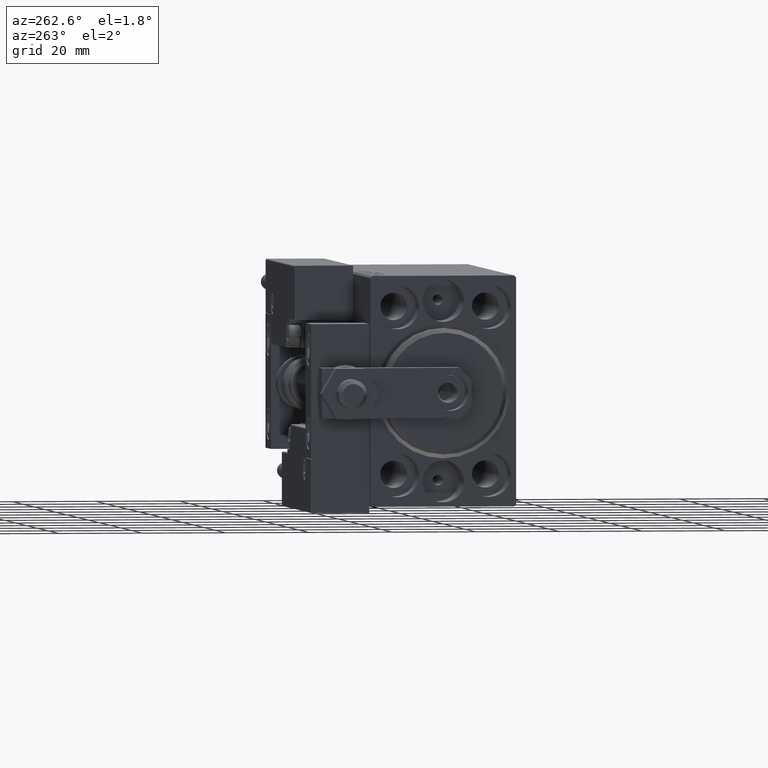
[diagram: clean part render]
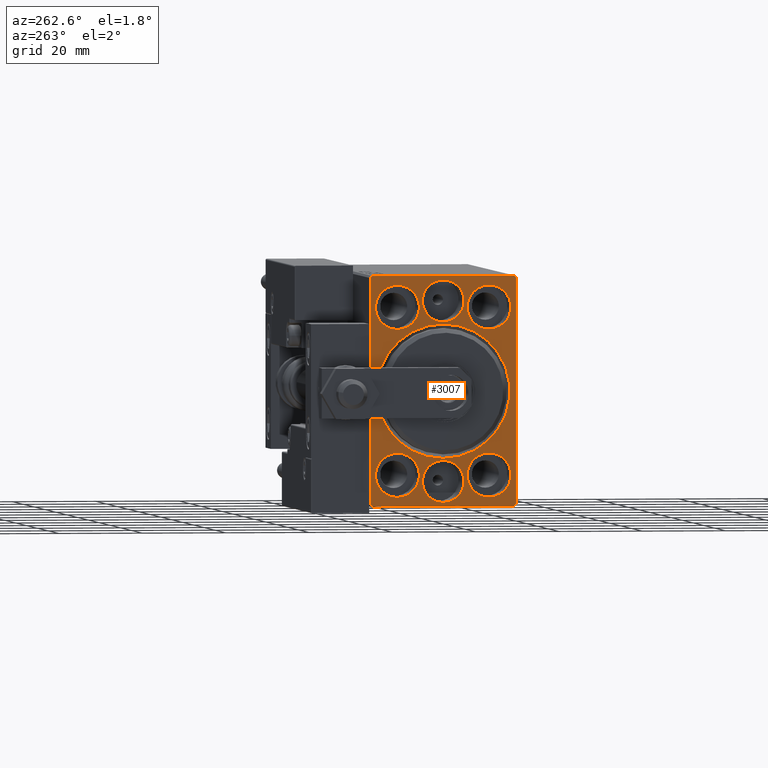
[diagram: same view with one face highlighted and labeled with its STEP entity id]
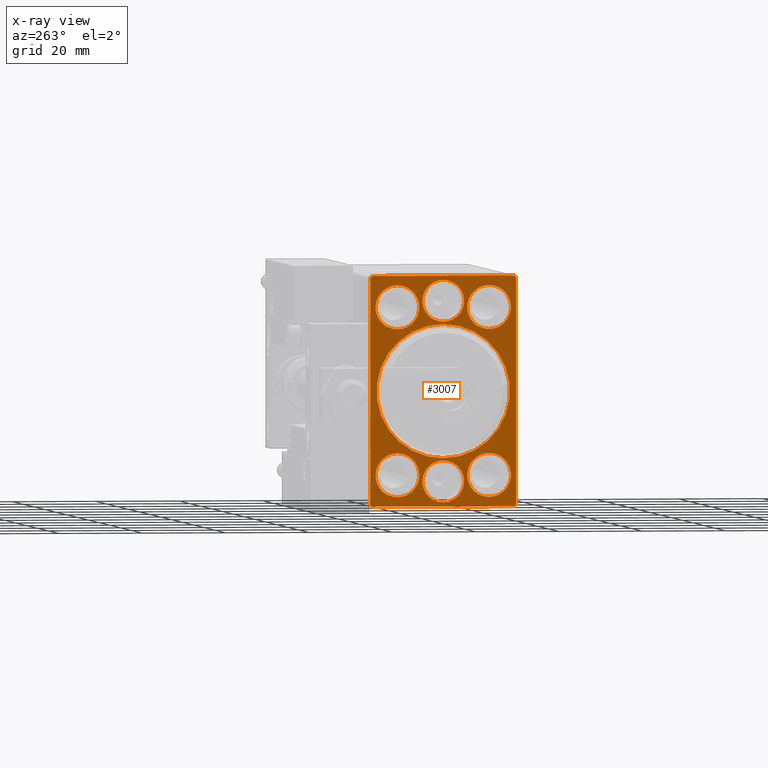
[diagram: x-ray of the same camera — body ghosted, the highlighted face saturated]
A machine part, auxiliary view. The second image highlights one B-rep face of the part: STEP entity #3007.
The next image is the same camera in x-ray: the body ghosted, the highlighted face saturated — about 0% of this face is hidden behind the body in this view.
In plain terms, the highlighted planar face has unit normal (1, 0, 0).
Its self-contained STEP definition (entity closure, byte-faithful):
#134 = LINE ( 'NONE', #22978, #14596 ) ;
#206 = CARTESIAN_POINT ( 'NONE',  ( 0.000000000000000000, 17.00000000000000711, -27.50000000000000355 ) ) ;
#318 = EDGE_CURVE ( 'NONE', #46711, #33952, #41290, .T. ) ;
#702 = DIRECTION ( 'NONE',  ( 0.000000000000000000, -1.261617073437677752E-16, 1.000000000000000000 ) ) ;
#732 = CARTESIAN_POINT ( 'NONE',  ( 0.000000000000000000, -17.00000000000000000, -27.50000000000000355 ) ) ;
#933 = CARTESIAN_POINT ( 'NONE',  ( 0.000000000000000000, -11.00000000000000355, -25.25000000000000000 ) ) ;
#1569 = VERTEX_POINT ( 'NONE', #4732 ) ;
#1576 = DIRECTION ( 'NONE',  ( 0.000000000000000000, 0.000000000000000000, 1.000000000000000000 ) ) ;
#1749 = DIRECTION ( 'NONE',  ( 0.000000000000000000, 0.000000000000000000, -1.000000000000000000 ) ) ;
#2031 = DIRECTION ( 'NONE',  ( 0.000000000000000000, 0.000000000000000000, -1.000000000000000000 ) ) ;
#2161 = EDGE_LOOP ( 'NONE', ( #13640, #5075 ) ) ;
#2199 = DIRECTION ( 'NONE',  ( 0.000000000000000000, 0.000000000000000000, 1.000000000000000000 ) ) ;
#2349 = CIRCLE ( 'NONE', #30685, 5.000000000000000888 ) ;
#2440 = LINE ( 'NONE', #25547, #8881 ) ;
#2516 = EDGE_CURVE ( 'NONE', #46633, #18234, #31245, .T. ) ;
#2565 = ORIENTED_EDGE ( 'NONE', *, *, #27871, .T. ) ;
#2603 = DIRECTION ( 'NONE',  ( -1.000000000000000000, 0.000000000000000000, 0.000000000000000000 ) ) ;
#3007 = ADVANCED_FACE ( 'NONE', ( #48422, #5815, #21288, #25612, #48171, #41062, #21799, #29664 ), #6066, .F. ) ;
#3097 = CARTESIAN_POINT ( 'NONE',  ( 0.000000000000000000, -11.00000000000000355, 14.75000000000000000 ) ) ;
#3102 = VERTEX_POINT ( 'NONE', #7066 ) ;
#3769 = DIRECTION ( 'NONE',  ( -1.000000000000000000, 0.000000000000000000, 0.000000000000000000 ) ) ;
#4053 = DIRECTION ( 'NONE',  ( 0.000000000000000000, 0.000000000000000000, 1.000000000000000000 ) ) ;
#4248 = VECTOR ( 'NONE', #702, 1000.000000000000000 ) ;
#4515 = CARTESIAN_POINT ( 'NONE',  ( 0.000000000000000000, 17.50000000000000711, -27.50000000000000355 ) ) ;
#4732 = CARTESIAN_POINT ( 'NONE',  ( 0.000000000000000000, 17.00000000000001421, 27.50000000000000355 ) ) ;
#5075 = ORIENTED_EDGE ( 'NONE', *, *, #22261, .F. ) ;
#5163 = EDGE_CURVE ( 'NONE', #7263, #13702, #38526, .T. ) ;
#5815 = FACE_BOUND ( 'NONE', #2161, .T. ) ;
#6042 = DIRECTION ( 'NONE',  ( -1.000000000000000000, 0.000000000000000000, 0.000000000000000000 ) ) ;
#6066 = PLANE ( 'NONE',  #20627 ) ;
#7044 = DIRECTION ( 'NONE',  ( -0.000000000000000000, -0.7071067811865474617, 0.7071067811865474617 ) ) ;
#7066 = CARTESIAN_POINT ( 'NONE',  ( 0.000000000000000000, -1.224646799147353256E-15, 16.49999999999999645 ) ) ;
#7263 = VERTEX_POINT ( 'NONE', #46068 ) ;
#8295 = CARTESIAN_POINT ( 'NONE',  ( 0.000000000000000000, 11.00000000000000355, -25.25000000000000000 ) ) ;
#8811 = ORIENTED_EDGE ( 'NONE', *, *, #24196, .F. ) ;
#8881 = VECTOR ( 'NONE', #14092, 1000.000000000000114 ) ;
#9489 = CIRCLE ( 'NONE', #27341, 5.000000000000000888 ) ;
#9897 = EDGE_CURVE ( 'NONE', #47118, #15814, #45051, .T. ) ;
#9939 = VERTEX_POINT ( 'NONE', #42095 ) ;
#10015 = CARTESIAN_POINT ( 'NONE',  ( 0.000000000000000000, -11.00000000000000355, -20.00000000000000000 ) ) ;
#10048 = DIRECTION ( 'NONE',  ( -0.000000000000000000, 0.7071067811865474617, -0.7071067811865474617 ) ) ;
#10333 = ORIENTED_EDGE ( 'NONE', *, *, #19551, .T. ) ;
#10682 = ORIENTED_EDGE ( 'NONE', *, *, #28894, .F. ) ;
#10793 = EDGE_CURVE ( 'NONE', #1569, #44771, #43874, .T. ) ;
#10809 = ORIENTED_EDGE ( 'NONE', *, *, #32784, .T. ) ;
#11087 = CARTESIAN_POINT ( 'NONE',  ( 0.000000000000000000, -17.50000000000000000, 27.49999999999999645 ) ) ;
#11115 = CARTESIAN_POINT ( 'NONE',  ( 0.000000000000000000, -11.00000000000000355, 20.00000000000000000 ) ) ;
#11262 = DIRECTION ( 'NONE',  ( -1.000000000000000000, 0.000000000000000000, 0.000000000000000000 ) ) ;
#11484 = ORIENTED_EDGE ( 'NONE', *, *, #35262, .F. ) ;
#11493 = EDGE_LOOP ( 'NONE', ( #43834, #10809 ) ) ;
#12173 = DIRECTION ( 'NONE',  ( 0.000000000000000000, -1.000000000000000000, -1.982541115402065110E-16 ) ) ;
#12210 = AXIS2_PLACEMENT_3D ( 'NONE', #28377, #6042, #33455 ) ;
#13009 = EDGE_CURVE ( 'NONE', #40433, #3102, #9489, .T. ) ;
#13489 = ORIENTED_EDGE ( 'NONE', *, *, #10793, .F. ) ;
#13640 = ORIENTED_EDGE ( 'NONE', *, *, #13009, .F. ) ;
#13702 = VERTEX_POINT ( 'NONE', #44113 ) ;
#13798 = DIRECTION ( 'NONE',  ( 0.000000000000000000, -0.7071067811865474617, -0.7071067811865474617 ) ) ;
#14092 = DIRECTION ( 'NONE',  ( -0.000000000000000000, 0.7071067811865474617, 0.7071067811865474617 ) ) ;
#14104 = CARTESIAN_POINT ( 'NONE',  ( 0.000000000000000000, -17.50000000000000000, 26.99999999999999645 ) ) ;
#14387 = ORIENTED_EDGE ( 'NONE', *, *, #21336, .F. ) ;
#14448 = CARTESIAN_POINT ( 'NONE',  ( 0.000000000000000000, 0.000000000000000000, 0.000000000000000000 ) ) ;
#14596 = VECTOR ( 'NONE', #38195, 1000.000000000000000 ) ;
#14693 = DIRECTION ( 'NONE',  ( 0.000000000000000000, 0.000000000000000000, 1.000000000000000000 ) ) ;
#15814 = VERTEX_POINT ( 'NONE', #34558 ) ;
#15885 = ORIENTED_EDGE ( 'NONE', *, *, #318, .F. ) ;
#16228 = CARTESIAN_POINT ( 'NONE',  ( 0.000000000000000000, 17.50000000000000000, 27.50000000000000355 ) ) ;
#16861 = EDGE_LOOP ( 'NONE', ( #15885, #23686, #13489, #40948, #10682, #10333, #48087, #2565 ) ) ;
#17307 = CARTESIAN_POINT ( 'NONE',  ( 0.000000000000000000, 11.00000000000000355, 20.00000000000000000 ) ) ;
#17560 = CARTESIAN_POINT ( 'NONE',  ( 0.000000000000000000, -1.836970198721029589E-15, -21.50000000000000000 ) ) ;
#17654 = LINE ( 'NONE', #18416, #30818 ) ;
#17792 = VERTEX_POINT ( 'NONE', #42114 ) ;
#17877 = DIRECTION ( 'NONE',  ( 0.000000000000000000, 0.000000000000000000, 1.000000000000000000 ) ) ;
#17899 = AXIS2_PLACEMENT_3D ( 'NONE', #34056, #42642, #45706 ) ;
#17955 = LINE ( 'NONE', #41788, #45543 ) ;
#18234 = VERTEX_POINT ( 'NONE', #8295 ) ;
#18325 = DIRECTION ( 'NONE',  ( -1.000000000000000000, 0.000000000000000000, 0.000000000000000000 ) ) ;
#18416 = CARTESIAN_POINT ( 'NONE',  ( 0.000000000000000000, 17.00000000000001421, 27.50000000000000355 ) ) ;
#18432 = AXIS2_PLACEMENT_3D ( 'NONE', #21996, #37702, #45575 ) ;
#18785 = AXIS2_PLACEMENT_3D ( 'NONE', #17307, #2603, #21382 ) ;
#18982 = DIRECTION ( 'NONE',  ( 0.000000000000000000, 0.000000000000000000, 1.000000000000000000 ) ) ;
#19059 = VERTEX_POINT ( 'NONE', #933 ) ;
#19237 = EDGE_CURVE ( 'NONE', #46711, #44771, #2440, .T. ) ;
#19551 = EDGE_CURVE ( 'NONE', #32806, #46396, #32101, .T. ) ;
#19595 = CIRCLE ( 'NONE', #18785, 5.250000000000000888 ) ;
#20627 = AXIS2_PLACEMENT_3D ( 'NONE', #37013, #40051, #1749 ) ;
#20721 = CARTESIAN_POINT ( 'NONE',  ( 0.000000000000000000, 11.00000000000000355, -14.75000000000000000 ) ) ;
#21288 = FACE_BOUND ( 'NONE', #11493, .T. ) ;
#21336 = EDGE_CURVE ( 'NONE', #17792, #19059, #37318, .T. ) ;
#21382 = DIRECTION ( 'NONE',  ( 0.000000000000000000, 0.000000000000000000, 1.000000000000000000 ) ) ;
#21799 = FACE_BOUND ( 'NONE', #27493, .T. ) ;
#21823 = DIRECTION ( 'NONE',  ( -1.000000000000000000, 0.000000000000000000, 0.000000000000000000 ) ) ;
#21996 = CARTESIAN_POINT ( 'NONE',  ( 0.000000000000000000, 0.000000000000000000, 0.000000000000000000 ) ) ;
#22028 = CIRCLE ( 'NONE', #25276, 5.250000000000000888 ) ;
#22261 = EDGE_CURVE ( 'NONE', #3102, #40433, #47883, .T. ) ;
#22845 = CARTESIAN_POINT ( 'NONE',  ( 0.000000000000000000, -1.836970198721029589E-15, 21.50000000000000000 ) ) ;
#22978 = CARTESIAN_POINT ( 'NONE',  ( 0.000000000000000000, -17.50000000000000000, -27.50000000000000355 ) ) ;
#23145 = AXIS2_PLACEMENT_3D ( 'NONE', #41591, #21823, #14693 ) ;
#23168 = AXIS2_PLACEMENT_3D ( 'NONE', #14448, #29444, #2031 ) ;
#23190 = EDGE_CURVE ( 'NONE', #1569, #30302, #17654, .T. ) ;
#23324 = EDGE_CURVE ( 'NONE', #27581, #46396, #134, .T. ) ;
#23686 = ORIENTED_EDGE ( 'NONE', *, *, #19237, .T. ) ;
#23803 = LINE ( 'NONE', #4515, #4248 ) ;
#24196 = EDGE_CURVE ( 'NONE', #41904, #35321, #36515, .T. ) ;
#24886 = EDGE_CURVE ( 'NONE', #33050, #9939, #47877, .T. ) ;
#25225 = AXIS2_PLACEMENT_3D ( 'NONE', #22845, #42365, #4053 ) ;
#25276 = AXIS2_PLACEMENT_3D ( 'NONE', #11115, #3769, #18982 ) ;
#25296 = CARTESIAN_POINT ( 'NONE',  ( 0.000000000000000000, 17.50000000000000711, -27.00000000000000355 ) ) ;
#25547 = CARTESIAN_POINT ( 'NONE',  ( 0.000000000000000000, -17.50000000000000000, 26.99999999999999645 ) ) ;
#25556 = CARTESIAN_POINT ( 'NONE',  ( 0.000000000000000000, -11.00000000000000355, 20.00000000000000000 ) ) ;
#25612 = FACE_BOUND ( 'NONE', #34818, .T. ) ;
#25788 = DIRECTION ( 'NONE',  ( 0.000000000000000000, 0.000000000000000000, 1.000000000000000000 ) ) ;
#26024 = DIRECTION ( 'NONE',  ( -1.000000000000000000, 0.000000000000000000, 0.000000000000000000 ) ) ;
#26308 = DIRECTION ( 'NONE',  ( -1.000000000000000000, 0.000000000000000000, 0.000000000000000000 ) ) ;
#27022 = CIRCLE ( 'NONE', #44831, 5.250000000000000888 ) ;
#27341 = AXIS2_PLACEMENT_3D ( 'NONE', #29490, #37086, #1576 ) ;
#27493 = EDGE_LOOP ( 'NONE', ( #14387, #39481 ) ) ;
#27581 = VERTEX_POINT ( 'NONE', #732 ) ;
#27871 = EDGE_CURVE ( 'NONE', #27581, #33952, #17955, .T. ) ;
#28054 = CARTESIAN_POINT ( 'NONE',  ( 0.000000000000000000, 17.50000000000000000, 27.00000000000001776 ) ) ;
#28191 = EDGE_LOOP ( 'NONE', ( #8811, #48057 ) ) ;
#28227 = CARTESIAN_POINT ( 'NONE',  ( 0.000000000000000000, 0.000000000000000000, 15.99999999999998579 ) ) ;
#28377 = CARTESIAN_POINT ( 'NONE',  ( 0.000000000000000000, -11.00000000000000355, -20.00000000000000000 ) ) ;
#28575 = CARTESIAN_POINT ( 'NONE',  ( 0.000000000000000000, -1.836970198721029589E-15, 26.50000000000000000 ) ) ;
#28894 = EDGE_CURVE ( 'NONE', #32806, #30302, #23803, .T. ) ;
#29444 = DIRECTION ( 'NONE',  ( 1.000000000000000000, 0.000000000000000000, 0.000000000000000000 ) ) ;
#29490 = CARTESIAN_POINT ( 'NONE',  ( 0.000000000000000000, -1.836970198721029589E-15, 21.50000000000000000 ) ) ;
#29664 = FACE_OUTER_BOUND ( 'NONE', #16861, .T. ) ;
#30302 = VERTEX_POINT ( 'NONE', #28054 ) ;
#30685 = AXIS2_PLACEMENT_3D ( 'NONE', #17560, #18325, #49516 ) ;
#30818 = VECTOR ( 'NONE', #10048, 1000.000000000000114 ) ;
#30843 = AXIS2_PLACEMENT_3D ( 'NONE', #25556, #26308, #2199 ) ;
#31059 = CARTESIAN_POINT ( 'NONE',  ( 0.000000000000000000, -17.50000000000000000, -27.00000000000000355 ) ) ;
#31245 = CIRCLE ( 'NONE', #32031, 5.250000000000000888 ) ;
#32031 = AXIS2_PLACEMENT_3D ( 'NONE', #44552, #37438, #25788 ) ;
#32101 = LINE ( 'NONE', #35905, #44562 ) ;
#32784 = EDGE_CURVE ( 'NONE', #15814, #47118, #42729, .T. ) ;
#32806 = VERTEX_POINT ( 'NONE', #25296 ) ;
#33050 = VERTEX_POINT ( 'NONE', #37390 ) ;
#33455 = DIRECTION ( 'NONE',  ( 0.000000000000000000, 0.000000000000000000, 1.000000000000000000 ) ) ;
#33952 = VERTEX_POINT ( 'NONE', #31059 ) ;
#34056 = CARTESIAN_POINT ( 'NONE',  ( 0.000000000000000000, -1.836970198721029589E-15, -21.50000000000000000 ) ) ;
#34558 = CARTESIAN_POINT ( 'NONE',  ( 0.000000000000000000, 1.959434878635763554E-15, -15.99999999999998579 ) ) ;
#34623 = CARTESIAN_POINT ( 'NONE',  ( 0.000000000000000000, 11.00000000000000355, -20.00000000000000000 ) ) ;
#34818 = EDGE_LOOP ( 'NONE', ( #38777, #38408 ) ) ;
#35262 = EDGE_CURVE ( 'NONE', #9939, #33050, #2349, .T. ) ;
#35321 = VERTEX_POINT ( 'NONE', #3097 ) ;
#35905 = CARTESIAN_POINT ( 'NONE',  ( 0.000000000000000000, 17.50000000000000711, -27.00000000000000355 ) ) ;
#36396 = ORIENTED_EDGE ( 'NONE', *, *, #24886, .F. ) ;
#36515 = CIRCLE ( 'NONE', #30843, 5.250000000000000888 ) ;
#37013 = CARTESIAN_POINT ( 'NONE',  ( 0.000000000000000000, 0.000000000000000000, 0.000000000000000000 ) ) ;
#37086 = DIRECTION ( 'NONE',  ( -1.000000000000000000, 0.000000000000000000, 0.000000000000000000 ) ) ;
#37318 = CIRCLE ( 'NONE', #12210, 5.250000000000000888 ) ;
#37390 = CARTESIAN_POINT ( 'NONE',  ( 0.000000000000000000, -1.224646799147353256E-15, -26.50000000000000000 ) ) ;
#37438 = DIRECTION ( 'NONE',  ( -1.000000000000000000, 0.000000000000000000, 0.000000000000000000 ) ) ;
#37702 = DIRECTION ( 'NONE',  ( 1.000000000000000000, 0.000000000000000000, 0.000000000000000000 ) ) ;
#38195 = DIRECTION ( 'NONE',  ( 0.000000000000000000, 1.000000000000000000, 0.000000000000000000 ) ) ;
#38408 = ORIENTED_EDGE ( 'NONE', *, *, #49441, .F. ) ;
#38526 = CIRCLE ( 'NONE', #23145, 5.250000000000000888 ) ;
#38777 = ORIENTED_EDGE ( 'NONE', *, *, #2516, .F. ) ;
#39040 = AXIS2_PLACEMENT_3D ( 'NONE', #10015, #26024, #17877 ) ;
#39481 = ORIENTED_EDGE ( 'NONE', *, *, #43658, .F. ) ;
#40051 = DIRECTION ( 'NONE',  ( 1.000000000000000000, 0.000000000000000000, 0.000000000000000000 ) ) ;
#40433 = VERTEX_POINT ( 'NONE', #28575 ) ;
#40948 = ORIENTED_EDGE ( 'NONE', *, *, #23190, .T. ) ;
#41062 = FACE_BOUND ( 'NONE', #42521, .T. ) ;
#41290 = LINE ( 'NONE', #11087, #44933 ) ;
#41591 = CARTESIAN_POINT ( 'NONE',  ( 0.000000000000000000, 11.00000000000000355, 20.00000000000000000 ) ) ;
#41788 = CARTESIAN_POINT ( 'NONE',  ( 0.000000000000000000, -17.00000000000000000, -27.50000000000000355 ) ) ;
#41904 = VERTEX_POINT ( 'NONE', #49230 ) ;
#42041 = DIRECTION ( 'NONE',  ( 0.000000000000000000, 0.000000000000000000, -1.000000000000000000 ) ) ;
#42095 = CARTESIAN_POINT ( 'NONE',  ( 0.000000000000000000, -1.836970198721029589E-15, -16.49999999999999645 ) ) ;
#42114 = CARTESIAN_POINT ( 'NONE',  ( 0.000000000000000000, -11.00000000000000355, -14.75000000000000000 ) ) ;
#42365 = DIRECTION ( 'NONE',  ( -1.000000000000000000, 0.000000000000000000, 0.000000000000000000 ) ) ;
#42521 = EDGE_LOOP ( 'NONE', ( #48181, #45481 ) ) ;
#42642 = DIRECTION ( 'NONE',  ( -1.000000000000000000, 0.000000000000000000, 0.000000000000000000 ) ) ;
#42713 = DIRECTION ( 'NONE',  ( 0.000000000000000000, 0.000000000000000000, 1.000000000000000000 ) ) ;
#42729 = CIRCLE ( 'NONE', #18432, 15.99999999999998579 ) ;
#43658 = EDGE_CURVE ( 'NONE', #19059, #17792, #47968, .T. ) ;
#43829 = EDGE_CURVE ( 'NONE', #13702, #7263, #19595, .T. ) ;
#43834 = ORIENTED_EDGE ( 'NONE', *, *, #9897, .T. ) ;
#43874 = LINE ( 'NONE', #16228, #47487 ) ;
#44032 = EDGE_LOOP ( 'NONE', ( #11484, #36396 ) ) ;
#44113 = CARTESIAN_POINT ( 'NONE',  ( 0.000000000000000000, 11.00000000000000355, 14.75000000000000000 ) ) ;
#44552 = CARTESIAN_POINT ( 'NONE',  ( 0.000000000000000000, 11.00000000000000355, -20.00000000000000000 ) ) ;
#44562 = VECTOR ( 'NONE', #13798, 1000.000000000000114 ) ;
#44771 = VERTEX_POINT ( 'NONE', #49026 ) ;
#44831 = AXIS2_PLACEMENT_3D ( 'NONE', #34623, #11262, #42713 ) ;
#44933 = VECTOR ( 'NONE', #42041, 1000.000000000000000 ) ;
#45051 = CIRCLE ( 'NONE', #23168, 15.99999999999998579 ) ;
#45481 = ORIENTED_EDGE ( 'NONE', *, *, #43829, .F. ) ;
#45543 = VECTOR ( 'NONE', #7044, 1000.000000000000114 ) ;
#45575 = DIRECTION ( 'NONE',  ( 0.000000000000000000, 0.000000000000000000, -1.000000000000000000 ) ) ;
#45706 = DIRECTION ( 'NONE',  ( 0.000000000000000000, 0.000000000000000000, 1.000000000000000000 ) ) ;
#46068 = CARTESIAN_POINT ( 'NONE',  ( 0.000000000000000000, 11.00000000000000355, 25.25000000000000000 ) ) ;
#46396 = VERTEX_POINT ( 'NONE', #206 ) ;
#46421 = EDGE_CURVE ( 'NONE', #35321, #41904, #22028, .T. ) ;
#46633 = VERTEX_POINT ( 'NONE', #20721 ) ;
#46711 = VERTEX_POINT ( 'NONE', #14104 ) ;
#47118 = VERTEX_POINT ( 'NONE', #28227 ) ;
#47487 = VECTOR ( 'NONE', #12173, 1000.000000000000000 ) ;
#47877 = CIRCLE ( 'NONE', #17899, 5.000000000000000888 ) ;
#47883 = CIRCLE ( 'NONE', #25225, 5.000000000000000888 ) ;
#47968 = CIRCLE ( 'NONE', #39040, 5.250000000000000888 ) ;
#48057 = ORIENTED_EDGE ( 'NONE', *, *, #46421, .F. ) ;
#48087 = ORIENTED_EDGE ( 'NONE', *, *, #23324, .F. ) ;
#48171 = FACE_BOUND ( 'NONE', #28191, .T. ) ;
#48181 = ORIENTED_EDGE ( 'NONE', *, *, #5163, .F. ) ;
#48422 = FACE_BOUND ( 'NONE', #44032, .T. ) ;
#49026 = CARTESIAN_POINT ( 'NONE',  ( 0.000000000000000000, -17.00000000000000000, 27.49999999999999645 ) ) ;
#49230 = CARTESIAN_POINT ( 'NONE',  ( 0.000000000000000000, -11.00000000000000355, 25.25000000000000000 ) ) ;
#49441 = EDGE_CURVE ( 'NONE', #18234, #46633, #27022, .T. ) ;
#49516 = DIRECTION ( 'NONE',  ( 0.000000000000000000, 0.000000000000000000, 1.000000000000000000 ) ) ;